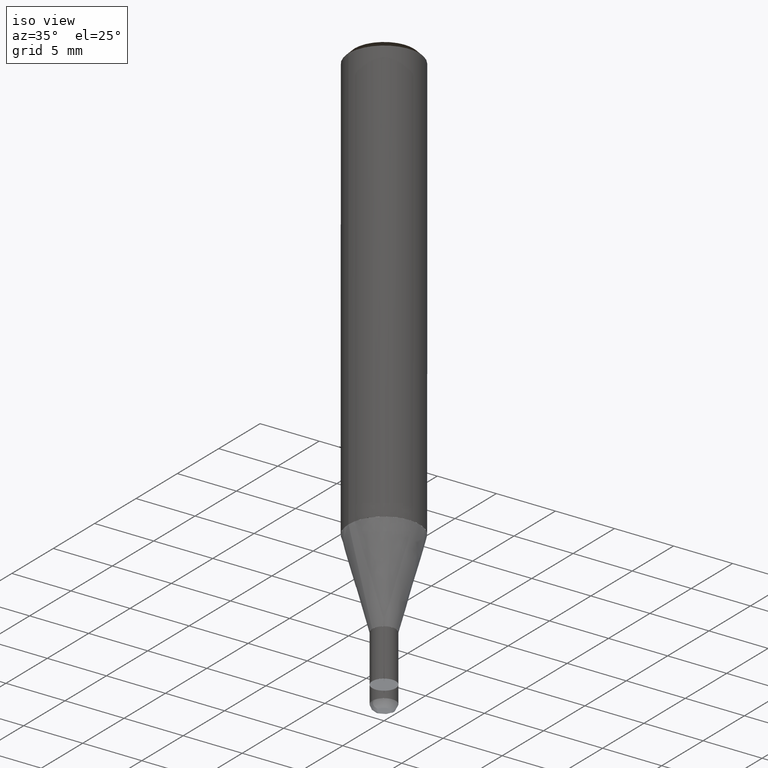
[diagram: clean part render]
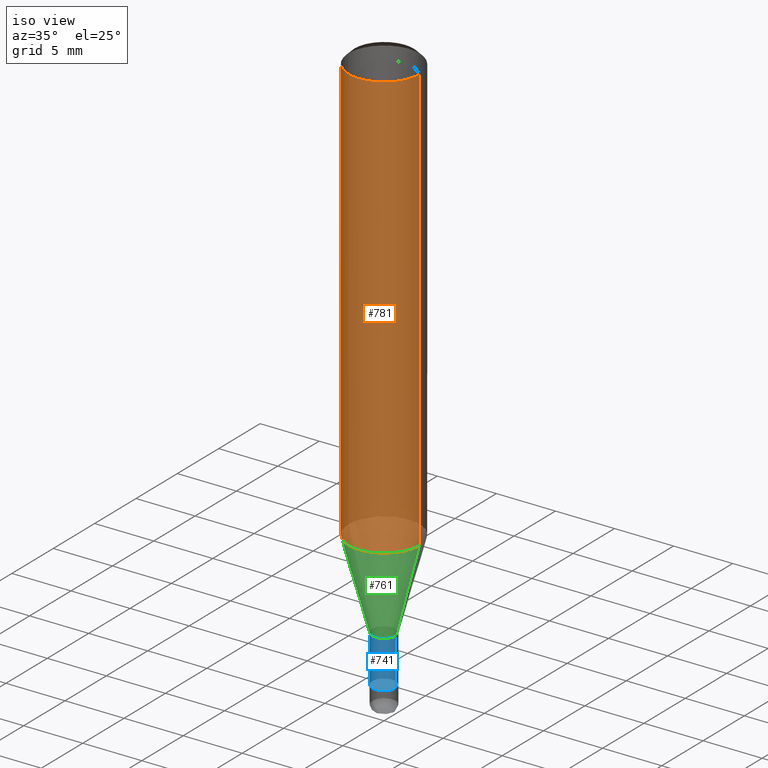
[diagram: same view with three faces highlighted in distinct colors, each labeled with its STEP entity id]
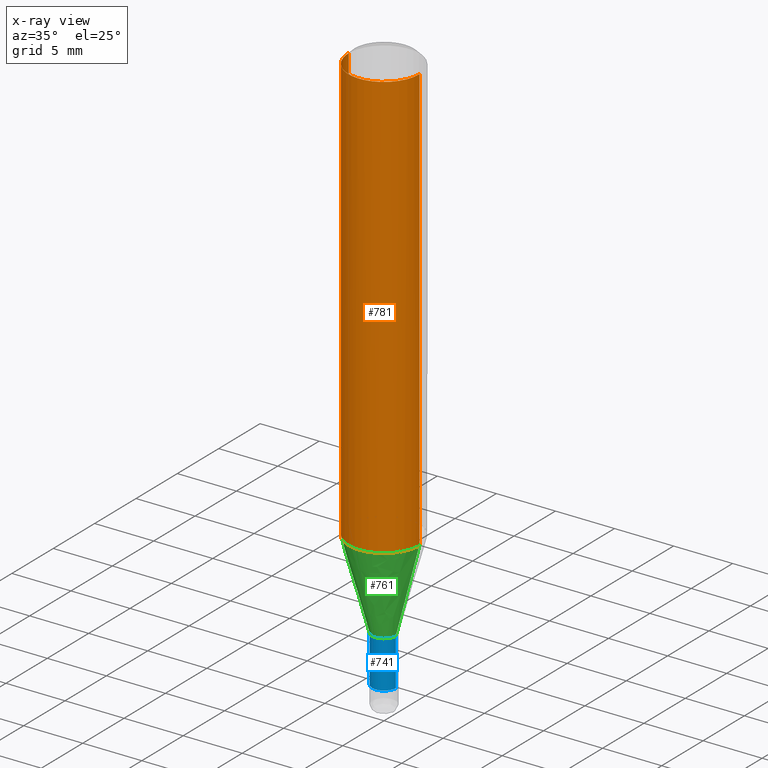
[diagram: x-ray of the same camera — body ghosted, the three highlighted faces saturated]
A machine part, iso view with three faces highlighted in distinct colors.
The next image is the same camera in x-ray (body ghosted, the three faces saturated) — at least one of them is partly hidden behind the body in this view.
Their STEP definitions:

[orange] entity #781 — the highlighted face is a freeform B-spline surface patch.
#411=CARTESIAN_POINT('',(3.0,0.0,0.0));
#415=CARTESIAN_POINT('',(-3.0,0.0,0.0));
#416=CARTESIAN_POINT('',(3.0,0.0,36.035898384862));
#420=CARTESIAN_POINT('',(-3.0,0.0,36.035898384862));
#430=CARTESIAN_POINT('',(-3.0,-3.0,0.0));
#431=CARTESIAN_POINT('',(0.0,-3.0,0.0));
#432=CARTESIAN_POINT('',(3.0,-3.0,0.0));
#433=CARTESIAN_POINT('',(-3.0,-3.0,36.035898384862));
#434=CARTESIAN_POINT('',(0.0,-3.0,36.035898384862));
#435=CARTESIAN_POINT('',(3.0,-3.0,36.035898384862));
#762=(
BOUNDED_SURFACE()
B_SPLINE_SURFACE(1,2,(
(#415,#430,#431,#432,#411),
(#420,#433,#434,#435,#416)
), .UNSPECIFIED.,.F.,.F.,.F.)
B_SPLINE_SURFACE_WITH_KNOTS((2,2),(3,2,3),(
0.0,1.0),(
0.0,0.5,1.0), .UNSPECIFIED.)
GEOMETRIC_REPRESENTATION_ITEM()
RATIONAL_B_SPLINE_SURFACE(((1.0,0.707106781187,1.0,0.707106781187,1.0),
(1.0,0.707106781187,1.0,0.707106781187,1.0)
))
REPRESENTATION_ITEM('')
SURFACE()
);
#763=(
BOUNDED_CURVE()
B_SPLINE_CURVE(1,(#420,#415),.UNSPECIFIED.,.F.,.F.)
B_SPLINE_CURVE_WITH_KNOTS((2,2),
(0.0,1.0),.UNSPECIFIED.)
CURVE()
GEOMETRIC_REPRESENTATION_ITEM()
RATIONAL_B_SPLINE_CURVE((1.0,1.0))
REPRESENTATION_ITEM('')
);
#764=(
BOUNDED_CURVE()
B_SPLINE_CURVE(2,(#415,#430,#431,#432,#411),.UNSPECIFIED.,.F.,.F.)
B_SPLINE_CURVE_WITH_KNOTS((3,2,3),
(0.0,0.5,1.0),.UNSPECIFIED.)
CURVE()
GEOMETRIC_REPRESENTATION_ITEM()
RATIONAL_B_SPLINE_CURVE((1.0,0.707106781187,1.0,0.707106781187,1.0))
REPRESENTATION_ITEM('')
);
#765=(
BOUNDED_CURVE()
B_SPLINE_CURVE(1,(#411,#416),.UNSPECIFIED.,.F.,.F.)
B_SPLINE_CURVE_WITH_KNOTS((2,2),
(0.0,1.0),.UNSPECIFIED.)
CURVE()
GEOMETRIC_REPRESENTATION_ITEM()
RATIONAL_B_SPLINE_CURVE((1.0,1.0))
REPRESENTATION_ITEM('')
);
#766=(
BOUNDED_CURVE()
B_SPLINE_CURVE(2,(#416,#435,#434,#433,#420),.UNSPECIFIED.,.F.,.F.)
B_SPLINE_CURVE_WITH_KNOTS((3,2,3),
(0.0,0.5,1.0),.UNSPECIFIED.)
CURVE()
GEOMETRIC_REPRESENTATION_ITEM()
RATIONAL_B_SPLINE_CURVE((1.0,0.707106781187,1.0,0.707106781187,1.0))
REPRESENTATION_ITEM('')
);
#767=VERTEX_POINT('',#411);
#768=VERTEX_POINT('',#415);
#769=VERTEX_POINT('',#416);
#770=VERTEX_POINT('',#420);
#771=EDGE_CURVE('',#770,#768,#763,.T.);
#772=EDGE_CURVE('',#768,#767,#764,.T.);
#773=EDGE_CURVE('',#767,#769,#765,.T.);
#774=EDGE_CURVE('',#769,#770,#766,.T.);
#775=ORIENTED_EDGE('',*,*,#771,.T.);
#776=ORIENTED_EDGE('',*,*,#772,.T.);
#777=ORIENTED_EDGE('',*,*,#773,.T.);
#778=ORIENTED_EDGE('',*,*,#774,.T.);
#779=EDGE_LOOP('',(#775,#776,#777,#778));
#780=FACE_OUTER_BOUND('',#779,.T.);
#781=ADVANCED_FACE('',(#780),#762,.T.);

[blue] entity #741 — the highlighted face is a freeform B-spline surface patch.
#388=CARTESIAN_POINT('',(1.0,0.0,-11.464101615138));
#392=CARTESIAN_POINT('',(-1.0,0.0,-11.464101615138));
#403=CARTESIAN_POINT('',(-1.0,-1.0,-11.464101615138));
#404=CARTESIAN_POINT('',(0.0,-1.0,-11.464101615138));
#405=CARTESIAN_POINT('',(1.0,-1.0,-11.464101615138));
#406=CARTESIAN_POINT('',(1.0,0.0,-7.464101615138));
#410=CARTESIAN_POINT('',(-1.0,0.0,-7.464101615138));
#427=CARTESIAN_POINT('',(-1.0,-1.0,-7.464101615138));
#428=CARTESIAN_POINT('',(0.0,-1.0,-7.464101615138));
#429=CARTESIAN_POINT('',(1.0,-1.0,-7.464101615138));
#722=(
BOUNDED_SURFACE()
B_SPLINE_SURFACE(1,2,(
(#392,#403,#404,#405,#388),
(#410,#427,#428,#429,#406)
), .UNSPECIFIED.,.F.,.F.,.F.)
B_SPLINE_SURFACE_WITH_KNOTS((2,2),(3,2,3),(
0.0,1.0),(
0.0,0.5,1.0), .UNSPECIFIED.)
GEOMETRIC_REPRESENTATION_ITEM()
RATIONAL_B_SPLINE_SURFACE(((1.0,0.707106781187,1.0,0.707106781187,1.0),
(1.0,0.707106781187,1.0,0.707106781187,1.0)
))
REPRESENTATION_ITEM('')
SURFACE()
);
#723=(
BOUNDED_CURVE()
B_SPLINE_CURVE(1,(#410,#392),.UNSPECIFIED.,.F.,.F.)
B_SPLINE_CURVE_WITH_KNOTS((2,2),
(0.0,1.0),.UNSPECIFIED.)
CURVE()
GEOMETRIC_REPRESENTATION_ITEM()
RATIONAL_B_SPLINE_CURVE((1.0,1.0))
REPRESENTATION_ITEM('')
);
#724=(
BOUNDED_CURVE()
B_SPLINE_CURVE(2,(#392,#403,#404,#405,#388),.UNSPECIFIED.,.F.,.F.)
B_SPLINE_CURVE_WITH_KNOTS((3,2,3),
(0.0,0.5,1.0),.UNSPECIFIED.)
CURVE()
GEOMETRIC_REPRESENTATION_ITEM()
RATIONAL_B_SPLINE_CURVE((1.0,0.707106781187,1.0,0.707106781187,1.0))
REPRESENTATION_ITEM('')
);
#725=(
BOUNDED_CURVE()
B_SPLINE_CURVE(1,(#388,#406),.UNSPECIFIED.,.F.,.F.)
B_SPLINE_CURVE_WITH_KNOTS((2,2),
(0.0,1.0),.UNSPECIFIED.)
CURVE()
GEOMETRIC_REPRESENTATION_ITEM()
RATIONAL_B_SPLINE_CURVE((1.0,1.0))
REPRESENTATION_ITEM('')
);
#726=(
BOUNDED_CURVE()
B_SPLINE_CURVE(2,(#406,#429,#428,#427,#410),.UNSPECIFIED.,.F.,.F.)
B_SPLINE_CURVE_WITH_KNOTS((3,2,3),
(0.0,0.5,1.0),.UNSPECIFIED.)
CURVE()
GEOMETRIC_REPRESENTATION_ITEM()
RATIONAL_B_SPLINE_CURVE((1.0,0.707106781187,1.0,0.707106781187,1.0))
REPRESENTATION_ITEM('')
);
#727=VERTEX_POINT('',#388);
#728=VERTEX_POINT('',#392);
#729=VERTEX_POINT('',#406);
#730=VERTEX_POINT('',#410);
#731=EDGE_CURVE('',#730,#728,#723,.T.);
#732=EDGE_CURVE('',#728,#727,#724,.T.);
#733=EDGE_CURVE('',#727,#729,#725,.T.);
#734=EDGE_CURVE('',#729,#730,#726,.T.);
#735=ORIENTED_EDGE('',*,*,#731,.T.);
#736=ORIENTED_EDGE('',*,*,#732,.T.);
#737=ORIENTED_EDGE('',*,*,#733,.T.);
#738=ORIENTED_EDGE('',*,*,#734,.T.);
#739=EDGE_LOOP('',(#735,#736,#737,#738));
#740=FACE_OUTER_BOUND('',#739,.T.);
#741=ADVANCED_FACE('',(#740),#722,.T.);

[green] entity #761 — the highlighted face is a freeform B-spline surface patch.
#406=CARTESIAN_POINT('',(1.0,0.0,-7.464101615138));
#410=CARTESIAN_POINT('',(-1.0,0.0,-7.464101615138));
#411=CARTESIAN_POINT('',(3.0,0.0,0.0));
#415=CARTESIAN_POINT('',(-3.0,0.0,0.0));
#427=CARTESIAN_POINT('',(-1.0,-1.0,-7.464101615138));
#428=CARTESIAN_POINT('',(0.0,-1.0,-7.464101615138));
#429=CARTESIAN_POINT('',(1.0,-1.0,-7.464101615138));
#430=CARTESIAN_POINT('',(-3.0,-3.0,0.0));
#431=CARTESIAN_POINT('',(0.0,-3.0,0.0));
#432=CARTESIAN_POINT('',(3.0,-3.0,0.0));
#742=(
BOUNDED_SURFACE()
B_SPLINE_SURFACE(1,2,(
(#410,#427,#428,#429,#406),
(#415,#430,#431,#432,#411)
), .UNSPECIFIED.,.F.,.F.,.F.)
B_SPLINE_SURFACE_WITH_KNOTS((2,2),(3,2,3),(
0.0,1.0),(
0.0,0.5,1.0), .UNSPECIFIED.)
GEOMETRIC_REPRESENTATION_ITEM()
RATIONAL_B_SPLINE_SURFACE(((1.0,0.707106781187,1.0,0.707106781187,1.0),
(1.0,0.707106781187,1.0,0.707106781187,1.0)
))
REPRESENTATION_ITEM('')
SURFACE()
);
#743=(
BOUNDED_CURVE()
B_SPLINE_CURVE(1,(#415,#410),.UNSPECIFIED.,.F.,.F.)
B_SPLINE_CURVE_WITH_KNOTS((2,2),
(0.0,1.0),.UNSPECIFIED.)
CURVE()
GEOMETRIC_REPRESENTATION_ITEM()
RATIONAL_B_SPLINE_CURVE((1.0,1.0))
REPRESENTATION_ITEM('')
);
#744=(
BOUNDED_CURVE()
B_SPLINE_CURVE(2,(#410,#427,#428,#429,#406),.UNSPECIFIED.,.F.,.F.)
B_SPLINE_CURVE_WITH_KNOTS((3,2,3),
(0.0,0.5,1.0),.UNSPECIFIED.)
CURVE()
GEOMETRIC_REPRESENTATION_ITEM()
RATIONAL_B_SPLINE_CURVE((1.0,0.707106781187,1.0,0.707106781187,1.0))
REPRESENTATION_ITEM('')
);
#745=(
BOUNDED_CURVE()
B_SPLINE_CURVE(1,(#406,#411),.UNSPECIFIED.,.F.,.F.)
B_SPLINE_CURVE_WITH_KNOTS((2,2),
(0.0,1.0),.UNSPECIFIED.)
CURVE()
GEOMETRIC_REPRESENTATION_ITEM()
RATIONAL_B_SPLINE_CURVE((1.0,1.0))
REPRESENTATION_ITEM('')
);
#746=(
BOUNDED_CURVE()
B_SPLINE_CURVE(2,(#411,#432,#431,#430,#415),.UNSPECIFIED.,.F.,.F.)
B_SPLINE_CURVE_WITH_KNOTS((3,2,3),
(0.0,0.5,1.0),.UNSPECIFIED.)
CURVE()
GEOMETRIC_REPRESENTATION_ITEM()
RATIONAL_B_SPLINE_CURVE((1.0,0.707106781187,1.0,0.707106781187,1.0))
REPRESENTATION_ITEM('')
);
#747=VERTEX_POINT('',#406);
#748=VERTEX_POINT('',#410);
#749=VERTEX_POINT('',#411);
#750=VERTEX_POINT('',#415);
#751=EDGE_CURVE('',#750,#748,#743,.T.);
#752=EDGE_CURVE('',#748,#747,#744,.T.);
#753=EDGE_CURVE('',#747,#749,#745,.T.);
#754=EDGE_CURVE('',#749,#750,#746,.T.);
#755=ORIENTED_EDGE('',*,*,#751,.T.);
#756=ORIENTED_EDGE('',*,*,#752,.T.);
#757=ORIENTED_EDGE('',*,*,#753,.T.);
#758=ORIENTED_EDGE('',*,*,#754,.T.);
#759=EDGE_LOOP('',(#755,#756,#757,#758));
#760=FACE_OUTER_BOUND('',#759,.T.);
#761=ADVANCED_FACE('',(#760),#742,.T.);